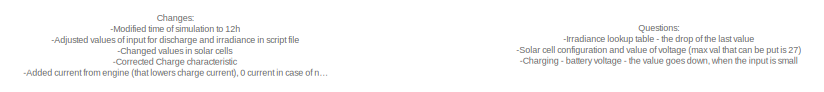
[diagram: root canvas - part 1/3, top right region]
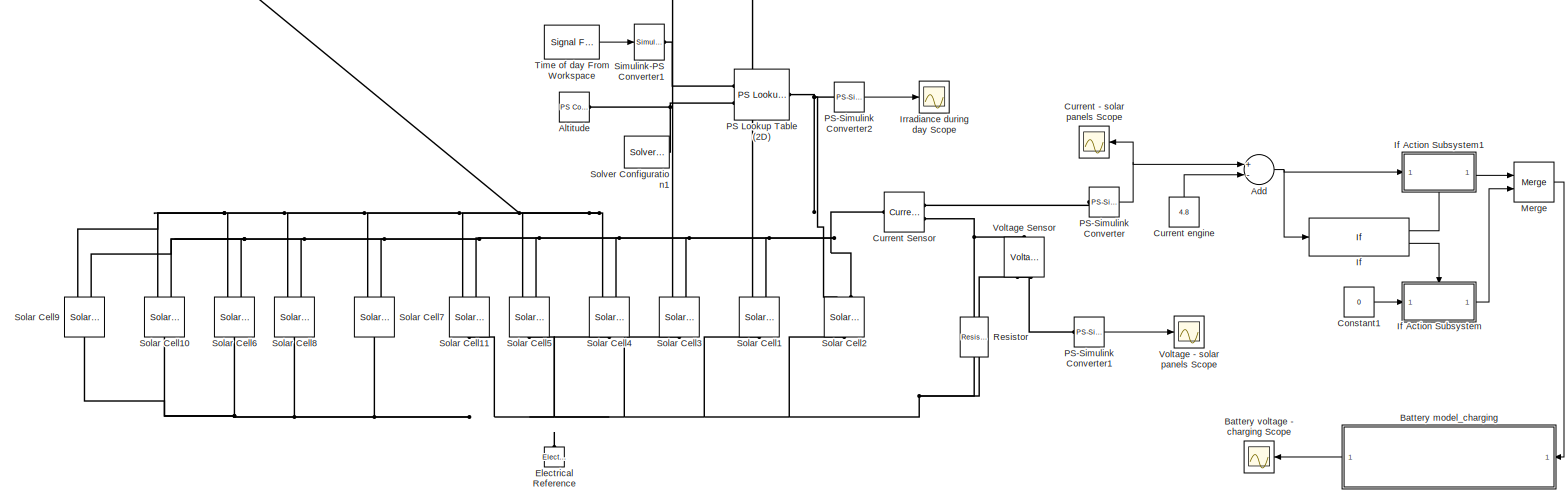
[diagram: root canvas - part 2/3, full width, middle band]
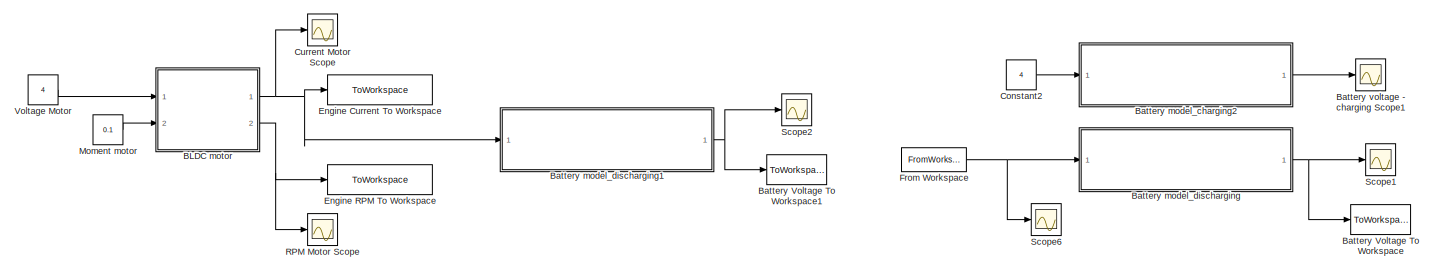
[diagram: root canvas - part 3/3, bottom center region]
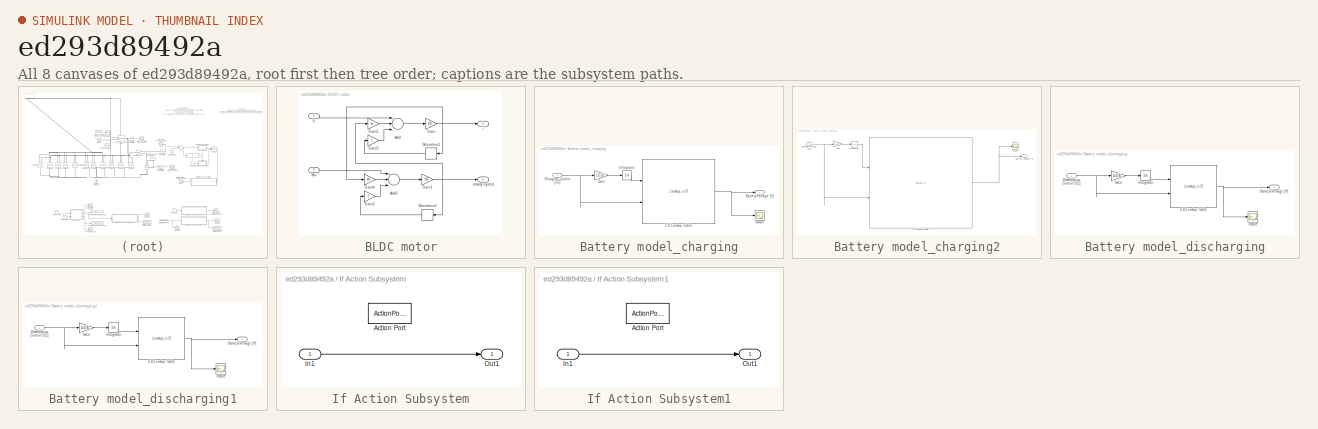
[diagram: thumbnail index - all 8 canvases of the model, root first then tree order]
MODEL slx_ed293d89492a
KIND model
CONFIG AbsTol = auto
CONFIG FixedStep = auto
CONFIG MaxStep = auto
CONFIG MinStep = auto
CONFIG RelTol = 1e-3
CONFIG SampleTimeConstraint = Unconstrained
CONFIG Solver = ode45
CONFIG SolverMode = Auto
CONFIG SolverName = ode45
CONFIG StartTime = 0.0
CONFIG StopTime = t_sim
BLOCK [Sum] Add
  InputSameDT = off
  Inputs = +-
  OutDataTypeStr = Inherit: Inherit via internal rule
  Ports = [2, 1]
  SaturateOnIntegerOverflow = off
BLOCK [Reference] Altitude  REF=fl_lib/Physical Signals/Sources/PS Constant
  ClassName = constant
  ComponentPath = foundation.physical_signal.sources.constant
  ComponentVariantNames = constant
  ComponentVariants = foundation.physical_signal.sources.constant
  LogSimulationData = off
  Ports = [0, 0, 0, 0, 0, 0, 1]
  SchemaVersion = 1
  SourceBlock = fl_lib/Physical Signals/Sources/PS Constant
  SourceFile = foundation.physical_signal.sources.constant
  SourceType = PS Constant
  constant = 1000
  constant_unit = 1
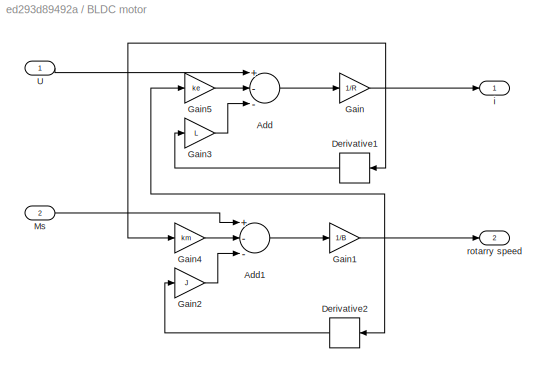
BLOCK [SubSystem] BLDC motor
  Ports = [2, 2]
  RequestExecContextInheritance = off
BLOCK [Sum] BLDC motor/Add
  InputSameDT = off
  Inputs = +--
  OutDataTypeStr = Inherit: Inherit via internal rule
  Ports = [3, 1]
  SaturateOnIntegerOverflow = off
BLOCK [Sum] BLDC motor/Add1
  InputSameDT = off
  Inputs = +--
  OutDataTypeStr = Inherit: Inherit via internal rule
  Ports = [3, 1]
  SaturateOnIntegerOverflow = off
BLOCK [Derivative] BLDC motor/Derivative1
BLOCK [Derivative] BLDC motor/Derivative2
BLOCK [Gain] BLDC motor/Gain
  Gain = 1/R
  OutDataTypeStr = Inherit: Inherit via internal rule
  ParamDataTypeStr = Inherit: Inherit via internal rule
  SaturateOnIntegerOverflow = off
BLOCK [Gain] BLDC motor/Gain1
  Gain = 1/B
  OutDataTypeStr = Inherit: Inherit via internal rule
  ParamDataTypeStr = Inherit: Inherit via internal rule
  SaturateOnIntegerOverflow = off
BLOCK [Gain] BLDC motor/Gain2
  Gain = J
  OutDataTypeStr = Inherit: Inherit via internal rule
  ParamDataTypeStr = Inherit: Inherit via internal rule
  SaturateOnIntegerOverflow = off
BLOCK [Gain] BLDC motor/Gain3
  Gain = L
  OutDataTypeStr = Inherit: Inherit via internal rule
  ParamDataTypeStr = Inherit: Inherit via internal rule
  SaturateOnIntegerOverflow = off
BLOCK [Gain] BLDC motor/Gain4
  Gain = km
  OutDataTypeStr = Inherit: Inherit via internal rule
  ParamDataTypeStr = Inherit: Inherit via internal rule
  SaturateOnIntegerOverflow = off
BLOCK [Gain] BLDC motor/Gain5
  Gain = ke
  OutDataTypeStr = Inherit: Inherit via internal rule
  ParamDataTypeStr = Inherit: Inherit via internal rule
  SaturateOnIntegerOverflow = off
BLOCK [Inport] BLDC motor/Ms
  IconDisplay = Port number
  Port = 2
BLOCK [Inport] BLDC motor/U 
  IconDisplay = Port number
BLOCK [Outport] BLDC motor/i
  IconDisplay = Port number
BLOCK [Outport] BLDC motor/rotarry speed
  IconDisplay = Port number
  Port = 2
BLOCK [ToWorkspace] Battery Voltage To Workspace
  FixptAsFi = on
  MaxDataPoints = inf
  Ports = [1]
  SampleTime = -1
  Save2DSignal = 3-D array (concatenate along third dimension)
  VariableName = simout_d
BLOCK [ToWorkspace] Battery Voltage To Workspace1
  FixptAsFi = on
  MaxDataPoints = inf
  Ports = [1]
  SampleTime = -1
  Save2DSignal = 3-D array (concatenate along third dimension)
  VariableName = simout_d1
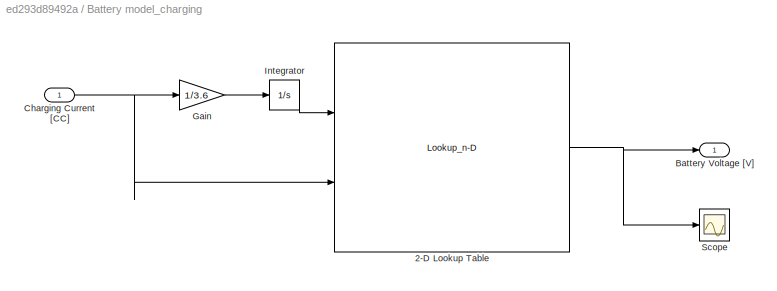
BLOCK [SubSystem] Battery model_charging
  Ports = [1, 1]
  RequestExecContextInheritance = off
BLOCK [Lookup_n-D] Battery model_charging/2-D Lookup Table
  BreakpointsForDimension1 = 16*3300*[0,0.1,0.2,0.3,0.4,0.5,0.6,0.7,0.8,0.9,0.95,1]
  BreakpointsForDimension2 = [1,2]
  InternalRulePriority = Speed
  Ports = [2, 1]
  RndMeth = Simplest
  Table = reshape(4*[3,3.45,3.6,3.65,3.7,3.75,3.8,3.87,3.95,4.08,4.2,4.2,3,3.6,3.8,3.85,3.87,3.9,3.93,3.97,4.05,4.2,4.2,4.2],12,2)
BLOCK [Outport] Battery model_charging/Battery Voltage [V]
  IconDisplay = Port number
BLOCK [Inport] Battery model_charging/Charging Current [CC]
  IconDisplay = Port number
BLOCK [Gain] Battery model_charging/Gain
  Gain = 1/3.6
  OutDataTypeStr = Inherit: Inherit via internal rule
  ParamDataTypeStr = Inherit: Inherit via internal rule
  SaturateOnIntegerOverflow = off
BLOCK [Integrator] Battery model_charging/Integrator
  Ports = [1, 1]
BLOCK [Scope] Battery model_charging/Scope
  DataFormat = StructureWithTime
  Floating = off
  LimitDataPoints = off
  NumInputPorts = 1
  Ports = [1]
  YMax = 5.49028
  YMin = -7.4125
BLOCK [SubSystem] Battery model_charging2
  Ports = [1, 1]
  RequestExecContextInheritance = off
BLOCK [Lookup_n-D] Battery model_charging2/2-D Lookup Table
  BreakpointsForDimension1 = 16*3300*[0,0.1,0.2,0.3,0.4,0.5,0.6,0.7,0.8,0.9,0.95,1]
  BreakpointsForDimension2 = [1,2]
  InternalRulePriority = Speed
  Ports = [2, 1]
  RndMeth = Simplest
  Table = reshape(4*[3,3.45,3.6,3.65,3.7,3.75,3.8,3.87,3.95,4.08,4.2,4.2,3,3.6,3.8,3.85,3.87,3.9,3.93,4.0,4.05,4.2,4.2,4.2],12,2)
BLOCK [Outport] Battery model_charging2/Battery Voltage [V]
  IconDisplay = Port number
BLOCK [Inport] Battery model_charging2/Charging Current [CC]
  IconDisplay = Port number
BLOCK [Gain] Battery model_charging2/Gain
  Gain = 1/3.6
  OutDataTypeStr = Inherit: Inherit via internal rule
  ParamDataTypeStr = Inherit: Inherit via internal rule
  SaturateOnIntegerOverflow = off
BLOCK [Integrator] Battery model_charging2/Integrator
  Ports = [1, 1]
BLOCK [Scope] Battery model_charging2/Scope
  DataFormat = StructureWithTime
  Floating = off
  LimitDataPoints = off
  NumInputPorts = 1
  Ports = [1]
  YMax = 5.49028
  YMin = -7.4125
BLOCK [SubSystem] Battery model_discharging
  Ports = [1, 1]
  RequestExecContextInheritance = off
BLOCK [Lookup_n-D] Battery model_discharging/2-D Lookup Table
  BreakpointsForDimension1 = 16*[0,50,100,200,2900,3000,3100,3200,3300,3400]
  BreakpointsForDimension2 = [0,0.2,0.5,1,2]
  InternalRulePriority = Speed
  Ports = [2, 1]
  RndMeth = Simplest
  Table = reshape(4*[4.2,4.12,4.1,4.04,3.32,3.28,3.25,3.12,3.0,2.5,4.2,4.12,4.1,4.04,3.32,3.28,3.25,3.12,3.0,2.5,4.2,4.05,4,3.95,3.19,3.15,3.05,2.85,2.5,2.5,4.2,3.95,3.9,3.84,3.0,2.92,2.85,2.65,2.5,2.5,4.2,3.8,3.72,3.65,2.8,2.75,2.7,2.61,2.5,2.5],10,5)
BLOCK [Outport] Battery model_discharging/Battery Voltage [V]
  IconDisplay = Port number
BLOCK [Inport] Battery model_discharging/Discharging Current [CC]
  IconDisplay = Port number
BLOCK [Gain] Battery model_discharging/Gain
  Gain = 1/3.6
  OutDataTypeStr = Inherit: Inherit via internal rule
  ParamDataTypeStr = Inherit: Inherit via internal rule
  SaturateOnIntegerOverflow = off
BLOCK [Integrator] Battery model_discharging/Integrator
  Ports = [1, 1]
BLOCK [Scope] Battery model_discharging/Scope
  DataFormat = StructureWithTime
  Floating = off
  LimitDataPoints = off
  NumInputPorts = 1
  Ports = [1]
  YMax = 5.49028
  YMin = -7.4125
BLOCK [SubSystem] Battery model_discharging1
  Ports = [1, 1]
  RequestExecContextInheritance = off
BLOCK [Lookup_n-D] Battery model_discharging1/2-D Lookup Table
  BreakpointsForDimension1 = 16*[0,50,100,200,2900,3000,3100,3200,3300,3400]
  BreakpointsForDimension2 = [0,0.2,0.5,1,2]
  InternalRulePriority = Speed
  Ports = [2, 1]
  RndMeth = Simplest
  Table = reshape(4*[4.2,4.12,4.1,4.04,3.32,3.28,3.25,3.12,3.0,2.5,4.2,4.12,4.1,4.04,3.32,3.28,3.25,3.12,3.0,2.5,4.2,4.05,4,3.95,3.19,3.15,3.05,2.85,2.5,2.5,4.2,3.95,3.9,3.84,3.0,2.92,2.85,2.65,2.5,2.5,4.2,3.8,3.72,3.65,2.8,2.75,2.7,2.61,2.5,2.5],10,5)
BLOCK [Outport] Battery model_discharging1/Battery Voltage [V]
  IconDisplay = Port number
BLOCK [Inport] Battery model_discharging1/Discharging Current [CC]
  IconDisplay = Port number
BLOCK [Gain] Battery model_discharging1/Gain
  Gain = 1/3.6
  OutDataTypeStr = Inherit: Inherit via internal rule
  ParamDataTypeStr = Inherit: Inherit via internal rule
  SaturateOnIntegerOverflow = off
BLOCK [Integrator] Battery model_discharging1/Integrator
  Ports = [1, 1]
BLOCK [Scope] Battery model_discharging1/Scope
  DataFormat = StructureWithTime
  Floating = off
  LimitDataPoints = off
  NumInputPorts = 1
  Ports = [1]
  YMax = 5.49028
  YMin = -7.4125
BLOCK [Scope] Battery voltage -  charging Scope
  DataFormat = StructureWithTime
  Floating = off
  LegendLocations = 0.77589     0.89061     0.18346    0.034937
  LimitDataPoints = off
  NumInputPorts = 1
  Ports = [1]
  SaveName = ScopeData3
  ShowLegends = on
  YMax = 18
  YMin = 11
BLOCK [Scope] Battery voltage -  charging Scope1
  DataFormat = StructureWithTime
  Floating = off
  LegendLocations = 0.76953     0.89061     0.18982    0.034937
  LimitDataPoints = off
  NumInputPorts = 1
  Ports = [1]
  SaveName = ScopeData6
  ShowLegends = on
  YMax = 16.8
  YMin = 14.4
BLOCK [Constant] Constant1
  Value = 0
BLOCK [Constant] Constant2
  Value = 4
BLOCK [Scope] Current - solar panels Scope
  Floating = off
  LegendLocations = 0.75725      0.8785     0.19765    0.038804
  LimitDataPoints = off
  NumInputPorts = 1
  Ports = [1]
  SaveName = ScopeData4
  ShowLegends = on
  YMax = 6.8
  YMin = 5.9
BLOCK [Scope] Current Motor Scope
  DataFormat = StructureWithTime
  Floating = off
  LimitDataPoints = off
  NumInputPorts = 1
  Ports = [1]
  SaveName = ScopeData8
  ShowLegends = on
  YMax = 5.05693
  YMin = 4.57531
BLOCK [Reference] Current Sensor  REF=fl_lib/Electrical/Electrical Sensors/Current Sensor
  ClassName = current
  ComponentPath = foundation.electrical.sensors.current
  ComponentVariantNames = current
  ComponentVariants = foundation.electrical.sensors.current
  LogSimulationData = off
  Ports = [0, 0, 0, 0, 0, 1, 2]
  SchemaVersion = 1
  SourceBlock = fl_lib/Electrical/Electrical Sensors/Current Sensor
  SourceFile = foundation.electrical.sensors.current
  SourceType = Current Sensor
BLOCK [Constant] Current engine
  Value = 4.8
BLOCK [Reference] Electrical Reference  REF=fl_lib/Electrical/Electrical Elements/Electrical Reference
  ClassName = reference
  ComponentPath = foundation.electrical.elements.reference
  ComponentVariantNames = reference
  ComponentVariants = foundation.electrical.elements.reference
  LogSimulationData = off
  Ports = [0, 0, 0, 0, 0, 1]
  SchemaVersion = 1
  SourceBlock = fl_lib/Electrical/Electrical Elements/Electrical Reference
  SourceFile = foundation.electrical.elements.reference
  SourceType = Electrical Reference
BLOCK [ToWorkspace] Engine Current To Workspace
  FixptAsFi = on
  MaxDataPoints = inf
  Ports = [1]
  SampleTime = -1
  Save2DSignal = 3-D array (concatenate along third dimension)
  VariableName = simout_mot_current
BLOCK [ToWorkspace] Engine RPM To Workspace
  FixptAsFi = on
  MaxDataPoints = inf
  Ports = [1]
  SampleTime = -1
  Save2DSignal = 3-D array (concatenate along third dimension)
  VariableName = simout_mot_RPM
BLOCK [FromWorkspace] From Workspace
  SampleTime = 0
  VariableName = simin_d
  ZeroCross = on
BLOCK [If] If
  Ports = [1, 2]
BLOCK [SubSystem] If Action Subsystem
  Ports = [1, 1, 0, 0, 0, 0, 0, 1]
  RequestExecContextInheritance = off
  TreatAsAtomicUnit = on
BLOCK [ActionPort] If Action Subsystem/Action Port
  ActionType = else
BLOCK [Inport] If Action Subsystem/In1
  IconDisplay = Port number
BLOCK [Outport] If Action Subsystem/Out1
  IconDisplay = Port number
BLOCK [SubSystem] If Action Subsystem1
  Ports = [1, 1, 0, 0, 0, 0, 0, 1]
  RequestExecContextInheritance = off
  TreatAsAtomicUnit = on
BLOCK [ActionPort] If Action Subsystem1/Action Port
  ActionType = then
BLOCK [Inport] If Action Subsystem1/In1
  IconDisplay = Port number
BLOCK [Outport] If Action Subsystem1/Out1
  IconDisplay = Port number
BLOCK [Scope] Irradiance during day Scope
  Floating = off
  LegendLocations = 0.7502      0.8785     0.20471    0.038804
  LimitDataPoints = off
  NumInputPorts = 1
  Ports = [1]
  SaveName = ScopeData2
  ShowLegends = on
  YMax = 2
  YMin = 0
BLOCK [Merge] Merge
  Ports = [2, 1]
BLOCK [Constant] Moment motor
  Value = 0.1
BLOCK [Reference] PS Lookup Table (2D)  REF=fl_lib/Physical Signals/Lookup Tables/PS Lookup Table (2D)
  ClassName = two_dimensional
  ComponentPath = foundation.physical_signal.lookup_tables.two_dimensional
  ComponentVariantNames = two_dimensional
  ComponentVariants = foundation.physical_signal.lookup_tables.two_dimensional
  LogSimulationData = off
  Ports = [0, 0, 0, 0, 0, 2, 1]
  SchemaVersion = 1
  SourceBlock = fl_lib/Physical Signals/Lookup Tables/PS Lookup Table (2D)
  SourceFile = foundation.physical_signal.lookup_tables.two_dimensional
  SourceType = PS Lookup Table (2D)
  extrap_method = 1
  extrap_method_unit = 1
  interp_method = 1
  interp_method_unit = 1
  x_t = [4,5,6,7,8,9,10,11,12,13,14,15,16,17,18,19,20]
  x_t_unit = 1
  y_t = [2000,4000,8000]
  y_t_unit = 1
  z_t = [0,0,0;0,10,90;350,440,600;600,700,900;750,880,1040;820,920,1080;900,980,1100;940,1000,1110;960,1020,1150;940,1000,1140;;900,980,1100;;820,920,1080;750,880,1040;600,700,900;350,440,600;0,10,90;0,0,0]
  z_t_unit = 1
BLOCK [Reference] PS-Simulink Converter  REF=nesl_utility/PS-Simulink
Converter
  AffineConversion = off
  Frequencies = []
  LeftPortType = input
  PhysicalDomain = network_engine_domain
  Ports = [0, 1, 0, 0, 0, 1]
  PseudoPeriodic = off
  RightPortType = output
  SourceBlock = nesl_utility/PS-Simulink\nConverter
  SourceType = PS-Simulink\nConverter
  SubClassName = ps_output
  Unit = 1
BLOCK [Reference] PS-Simulink Converter1  REF=nesl_utility/PS-Simulink
Converter
  AffineConversion = off
  Frequencies = []
  LeftPortType = input
  PhysicalDomain = network_engine_domain
  Ports = [0, 1, 0, 0, 0, 1]
  PseudoPeriodic = off
  RightPortType = output
  SourceBlock = nesl_utility/PS-Simulink\nConverter
  SourceType = PS-Simulink\nConverter
  SubClassName = ps_output
  Unit = 1
BLOCK [Reference] PS-Simulink Converter2  REF=nesl_utility/PS-Simulink
Converter
  AffineConversion = off
  Frequencies = []
  LeftPortType = input
  PhysicalDomain = network_engine_domain
  Ports = [0, 1, 0, 0, 0, 1]
  PseudoPeriodic = off
  RightPortType = output
  SourceBlock = nesl_utility/PS-Simulink\nConverter
  SourceType = PS-Simulink\nConverter
  SubClassName = ps_output
  Unit = 1
BLOCK [Scope] RPM Motor Scope
  DataFormat = StructureWithTime
  Floating = off
  LegendLocations = 0.79058     0.86454     0.15796    0.043262
  LimitDataPoints = off
  NumInputPorts = 1
  Ports = [1]
  SaveName = ScopeData9
  ShowLegends = on
  YMax = -0.475494
  YMin = -0.475494
BLOCK [Reference] Resistor  REF=fl_lib/Electrical/Electrical Elements/Resistor
  ClassName = resistor
  ComponentPath = foundation.electrical.elements.resistor
  ComponentVariantNames = resistor
  ComponentVariants = foundation.electrical.elements.resistor
  LogSimulationData = off
  Ports = [0, 0, 0, 0, 0, 1, 1]
  R = 1
  R_unit = Ohm
  SchemaVersion = 1
  SourceBlock = fl_lib/Electrical/Electrical Elements/Resistor
  SourceFile = foundation.electrical.elements.resistor
  SourceType = Resistor
  i = 0
  i_priority = High
  i_specify = off
  i_unit = A
  v = 0
  v_priority = High
  v_specify = off
  v_unit = V
BLOCK [Scope] Scope1
  DataFormat = StructureWithTime
  Floating = off
  LimitDataPoints = off
  NumInputPorts = 1
  Ports = [1]
  SaveName = ScopeData1
  ShowLegends = on
  YMax = 17
  YMin = 10
BLOCK [Scope] Scope2
  DataFormat = StructureWithTime
  Floating = off
  LimitDataPoints = off
  NumInputPorts = 1
  Ports = [1]
  SaveName = ScopeData10
  ShowLegends = on
  YMax = 17
  YMin = 10
BLOCK [Scope] Scope6
  Floating = off
  LimitDataPoints = off
  NumInputPorts = 1
  Ports = [1]
  SaveName = ScopeData7
  YMax = 2
  YMin = 2
BLOCK [Reference] Simulink-PS Converter1  REF=nesl_utility/Simulink-PS
Converter
  AffineConversion = off
  Frequencies = []
  InputFilterTimeConstant = 0.001
  InputFiltering = off
  LeftPortType = input
  NoiseDistribution = none
  NoiseParameters = []
  PhysicalDomain = network_engine_domain
  Ports = [1, 0, 0, 0, 0, 0, 1]
  PseudoPeriodic = off
  RightPortType = output
  SimscapeFilterOrder = 1
  SourceBlock = nesl_utility/Simulink-PS\nConverter
  SourceType = Simulink-PS\nConverter
  SubClassName = ps_input
  UdotUserProvided = 1
  Unit = 1
BLOCK [Reference] Solar Cell1  REF=elec_lib/Sources/Solar Cell
  ClassName = Simscape variant
  ComponentPath = elec.sources.solar_cell
  ComponentVariantNames = No thermal port, Show thermal port
  ComponentVariants = elec.sources.solar_cell, elec.sources.solar_cell_thermal
  EG = 1.11
  EG_unit = eV
  Iph = 7.34
  Iph_unit = A
  Ir0 = 1000
  Ir0_unit = W/m^2
  Is = 1e-6
  Is2 = 0
  Is2_unit = A
  Is_unit = A
  Isc = 0.9
  Isc_unit = A
  LogSimulationData = off
  N2 = 2
  N2_unit = 1
  N_series = 1
  N_series_unit = 1
  Ports = [0, 0, 0, 0, 0, 2, 1]
  Rp = Inf
  Rp_unit = Ohm
  Rs = 0
  Rs_unit = Ohm
  SchemaVersion = 1
  SourceBlock = elec_lib/Sources/Solar Cell
  SourceFile = elec.sources.solar_cell
  SourceType = Solar Cell
  TFIXED = 25
  TFIXED_unit = C
  TIPH1 = 0
  TIPH1_unit = 1/K
  TRP1 = 0
  TRP1_unit = 1
  TRS1 = 0
  TRS1_unit = 1
  TXIS1 = 3
  TXIS1_unit = 1
  TXIS2 = 3
  TXIS2_unit = 1
  Tmeas = 25
  Tmeas_unit = C
  Voc = 24
  Voc_unit = V
  ec = 1.5
  ec_unit = 1
  initial_temperature = 25
  initial_temperature_unit = C
  prm = 1
  prm_unit = 1
  thermal_mass = 100
  thermal_mass_unit = J/K
BLOCK [Reference] Solar Cell10  REF=elec_lib/Sources/Solar Cell
  ClassName = Simscape variant
  ComponentPath = elec.sources.solar_cell
  ComponentVariantNames = No thermal port, Show thermal port
  ComponentVariants = elec.sources.solar_cell, elec.sources.solar_cell_thermal
  EG = 1.11
  EG_unit = eV
  Iph = 7.34
  Iph_unit = A
  Ir0 = 1000
  Ir0_unit = W/m^2
  Is = 1e-6
  Is2 = 0
  Is2_unit = A
  Is_unit = A
  Isc = 0.9
  Isc_unit = A
  LogSimulationData = off
  N2 = 2
  N2_unit = 1
  N_series = 1
  N_series_unit = 1
  Ports = [0, 0, 0, 0, 0, 2, 1]
  Rp = Inf
  Rp_unit = Ohm
  Rs = 0
  Rs_unit = Ohm
  SchemaVersion = 1
  SourceBlock = elec_lib/Sources/Solar Cell
  SourceFile = elec.sources.solar_cell
  SourceType = Solar Cell
  TFIXED = 25
  TFIXED_unit = C
  TIPH1 = 0
  TIPH1_unit = 1/K
  TRP1 = 0
  TRP1_unit = 1
  TRS1 = 0
  TRS1_unit = 1
  TXIS1 = 3
  TXIS1_unit = 1
  TXIS2 = 3
  TXIS2_unit = 1
  Tmeas = 25
  Tmeas_unit = C
  Voc = 24
  Voc_unit = V
  ec = 1.5
  ec_unit = 1
  initial_temperature = 25
  initial_temperature_unit = C
  prm = 1
  prm_unit = 1
  thermal_mass = 100
  thermal_mass_unit = J/K
BLOCK [Reference] Solar Cell11  REF=elec_lib/Sources/Solar Cell
  ClassName = Simscape variant
  ComponentPath = elec.sources.solar_cell
  ComponentVariantNames = No thermal port, Show thermal port
  ComponentVariants = elec.sources.solar_cell, elec.sources.solar_cell_thermal
  EG = 1.11
  EG_unit = eV
  Iph = 7.34
  Iph_unit = A
  Ir0 = 1000
  Ir0_unit = W/m^2
  Is = 1e-6
  Is2 = 0
  Is2_unit = A
  Is_unit = A
  Isc = 0.9
  Isc_unit = A
  LogSimulationData = off
  N2 = 2
  N2_unit = 1
  N_series = 1
  N_series_unit = 1
  Ports = [0, 0, 0, 0, 0, 2, 1]
  Rp = Inf
  Rp_unit = Ohm
  Rs = 0
  Rs_unit = Ohm
  SchemaVersion = 1
  SourceBlock = elec_lib/Sources/Solar Cell
  SourceFile = elec.sources.solar_cell
  SourceType = Solar Cell
  TFIXED = 25
  TFIXED_unit = C
  TIPH1 = 0
  TIPH1_unit = 1/K
  TRP1 = 0
  TRP1_unit = 1
  TRS1 = 0
  TRS1_unit = 1
  TXIS1 = 3
  TXIS1_unit = 1
  TXIS2 = 3
  TXIS2_unit = 1
  Tmeas = 25
  Tmeas_unit = C
  Voc = 24
  Voc_unit = V
  ec = 1.5
  ec_unit = 1
  initial_temperature = 25
  initial_temperature_unit = C
  prm = 1
  prm_unit = 1
  thermal_mass = 100
  thermal_mass_unit = J/K
BLOCK [Reference] Solar Cell2  REF=elec_lib/Sources/Solar Cell
  ClassName = Simscape variant
  ComponentPath = elec.sources.solar_cell
  ComponentVariantNames = No thermal port, Show thermal port
  ComponentVariants = elec.sources.solar_cell, elec.sources.solar_cell_thermal
  EG = 1.11
  EG_unit = eV
  Iph = 7.34
  Iph_unit = A
  Ir0 = 1000
  Ir0_unit = W/m^2
  Is = 1e-6
  Is2 = 0
  Is2_unit = A
  Is_unit = A
  Isc = 0.9
  Isc_unit = A
  LogSimulationData = off
  N2 = 2
  N2_unit = 1
  N_series = 1
  N_series_unit = 1
  Ports = [0, 0, 0, 0, 0, 2, 1]
  Rp = Inf
  Rp_unit = Ohm
  Rs = 0
  Rs_unit = Ohm
  SchemaVersion = 1
  SourceBlock = elec_lib/Sources/Solar Cell
  SourceFile = elec.sources.solar_cell
  SourceType = Solar Cell
  TFIXED = 25
  TFIXED_unit = C
  TIPH1 = 0
  TIPH1_unit = 1/K
  TRP1 = 0
  TRP1_unit = 1
  TRS1 = 0
  TRS1_unit = 1
  TXIS1 = 3
  TXIS1_unit = 1
  TXIS2 = 3
  TXIS2_unit = 1
  Tmeas = 25
  Tmeas_unit = C
  Voc = 24
  Voc_unit = V
  ec = 1.5
  ec_unit = 1
  initial_temperature = 25
  initial_temperature_unit = C
  prm = 1
  prm_unit = 1
  thermal_mass = 100
  thermal_mass_unit = J/K
BLOCK [Reference] Solar Cell3  REF=elec_lib/Sources/Solar Cell
  ClassName = Simscape variant
  ComponentPath = elec.sources.solar_cell
  ComponentVariantNames = No thermal port, Show thermal port
  ComponentVariants = elec.sources.solar_cell, elec.sources.solar_cell_thermal
  EG = 1.11
  EG_unit = eV
  Iph = 7.34
  Iph_unit = A
  Ir0 = 1000
  Ir0_unit = W/m^2
  Is = 1e-6
  Is2 = 0
  Is2_unit = A
  Is_unit = A
  Isc = 0.9
  Isc_unit = A
  LogSimulationData = off
  N2 = 2
  N2_unit = 1
  N_series = 1
  N_series_unit = 1
  Ports = [0, 0, 0, 0, 0, 2, 1]
  Rp = Inf
  Rp_unit = Ohm
  Rs = 0
  Rs_unit = Ohm
  SchemaVersion = 1
  SourceBlock = elec_lib/Sources/Solar Cell
  SourceFile = elec.sources.solar_cell
  SourceType = Solar Cell
  TFIXED = 25
  TFIXED_unit = C
  TIPH1 = 0
  TIPH1_unit = 1/K
  TRP1 = 0
  TRP1_unit = 1
  TRS1 = 0
  TRS1_unit = 1
  TXIS1 = 3
  TXIS1_unit = 1
  TXIS2 = 3
  TXIS2_unit = 1
  Tmeas = 25
  Tmeas_unit = C
  Voc = 24
  Voc_unit = V
  ec = 1.5
  ec_unit = 1
  initial_temperature = 25
  initial_temperature_unit = C
  prm = 1
  prm_unit = 1
  thermal_mass = 100
  thermal_mass_unit = J/K
BLOCK [Reference] Solar Cell4  REF=elec_lib/Sources/Solar Cell
  ClassName = Simscape variant
  ComponentPath = elec.sources.solar_cell
  ComponentVariantNames = No thermal port, Show thermal port
  ComponentVariants = elec.sources.solar_cell, elec.sources.solar_cell_thermal
  EG = 1.11
  EG_unit = eV
  Iph = 7.34
  Iph_unit = A
  Ir0 = 1000
  Ir0_unit = W/m^2
  Is = 1e-6
  Is2 = 0
  Is2_unit = A
  Is_unit = A
  Isc = 0.9
  Isc_unit = A
  LogSimulationData = off
  N2 = 2
  N2_unit = 1
  N_series = 1
  N_series_unit = 1
  Ports = [0, 0, 0, 0, 0, 2, 1]
  Rp = Inf
  Rp_unit = Ohm
  Rs = 0
  Rs_unit = Ohm
  SchemaVersion = 1
  SourceBlock = elec_lib/Sources/Solar Cell
  SourceFile = elec.sources.solar_cell
  SourceType = Solar Cell
  TFIXED = 25
  TFIXED_unit = C
  TIPH1 = 0
  TIPH1_unit = 1/K
  TRP1 = 0
  TRP1_unit = 1
  TRS1 = 0
  TRS1_unit = 1
  TXIS1 = 3
  TXIS1_unit = 1
  TXIS2 = 3
  TXIS2_unit = 1
  Tmeas = 25
  Tmeas_unit = C
  Voc = 24
  Voc_unit = V
  ec = 1.5
  ec_unit = 1
  initial_temperature = 25
  initial_temperature_unit = C
  prm = 1
  prm_unit = 1
  thermal_mass = 100
  thermal_mass_unit = J/K
BLOCK [Reference] Solar Cell5  REF=elec_lib/Sources/Solar Cell
  ClassName = Simscape variant
  ComponentPath = elec.sources.solar_cell
  ComponentVariantNames = No thermal port, Show thermal port
  ComponentVariants = elec.sources.solar_cell, elec.sources.solar_cell_thermal
  EG = 1.11
  EG_unit = eV
  Iph = 7.34
  Iph_unit = A
  Ir0 = 1000
  Ir0_unit = W/m^2
  Is = 1e-6
  Is2 = 0
  Is2_unit = A
  Is_unit = A
  Isc = 0.9
  Isc_unit = A
  LogSimulationData = off
  N2 = 2
  N2_unit = 1
  N_series = 1
  N_series_unit = 1
  Ports = [0, 0, 0, 0, 0, 2, 1]
  Rp = Inf
  Rp_unit = Ohm
  Rs = 0
  Rs_unit = Ohm
  SchemaVersion = 1
  SourceBlock = elec_lib/Sources/Solar Cell
  SourceFile = elec.sources.solar_cell
  SourceType = Solar Cell
  TFIXED = 25
  TFIXED_unit = C
  TIPH1 = 0
  TIPH1_unit = 1/K
  TRP1 = 0
  TRP1_unit = 1
  TRS1 = 0
  TRS1_unit = 1
  TXIS1 = 3
  TXIS1_unit = 1
  TXIS2 = 3
  TXIS2_unit = 1
  Tmeas = 25
  Tmeas_unit = C
  Voc = 24
  Voc_unit = V
  ec = 1.5
  ec_unit = 1
  initial_temperature = 25
  initial_temperature_unit = C
  prm = 1
  prm_unit = 1
  thermal_mass = 100
  thermal_mass_unit = J/K
BLOCK [Reference] Solar Cell6  REF=elec_lib/Sources/Solar Cell
  ClassName = Simscape variant
  ComponentPath = elec.sources.solar_cell
  ComponentVariantNames = No thermal port, Show thermal port
  ComponentVariants = elec.sources.solar_cell, elec.sources.solar_cell_thermal
  EG = 1.11
  EG_unit = eV
  Iph = 7.34
  Iph_unit = A
  Ir0 = 1000
  Ir0_unit = W/m^2
  Is = 1e-6
  Is2 = 0
  Is2_unit = A
  Is_unit = A
  Isc = 0.9
  Isc_unit = A
  LogSimulationData = off
  N2 = 2
  N2_unit = 1
  N_series = 1
  N_series_unit = 1
  Ports = [0, 0, 0, 0, 0, 2, 1]
  Rp = Inf
  Rp_unit = Ohm
  Rs = 0
  Rs_unit = Ohm
  SchemaVersion = 1
  SourceBlock = elec_lib/Sources/Solar Cell
  SourceFile = elec.sources.solar_cell
  SourceType = Solar Cell
  TFIXED = 25
  TFIXED_unit = C
  TIPH1 = 0
  TIPH1_unit = 1/K
  TRP1 = 0
  TRP1_unit = 1
  TRS1 = 0
  TRS1_unit = 1
  TXIS1 = 3
  TXIS1_unit = 1
  TXIS2 = 3
  TXIS2_unit = 1
  Tmeas = 25
  Tmeas_unit = C
  Voc = 24
  Voc_unit = V
  ec = 1.5
  ec_unit = 1
  initial_temperature = 25
  initial_temperature_unit = C
  prm = 1
  prm_unit = 1
  thermal_mass = 100
  thermal_mass_unit = J/K
BLOCK [Reference] Solar Cell7  REF=elec_lib/Sources/Solar Cell
  ClassName = Simscape variant
  ComponentPath = elec.sources.solar_cell
  ComponentVariantNames = No thermal port, Show thermal port
  ComponentVariants = elec.sources.solar_cell, elec.sources.solar_cell_thermal
  EG = 1.11
  EG_unit = eV
  Iph = 7.34
  Iph_unit = A
  Ir0 = 1000
  Ir0_unit = W/m^2
  Is = 1e-6
  Is2 = 0
  Is2_unit = A
  Is_unit = A
  Isc = 0.9
  Isc_unit = A
  LogSimulationData = off
  N2 = 2
  N2_unit = 1
  N_series = 1
  N_series_unit = 1
  Ports = [0, 0, 0, 0, 0, 2, 1]
  Rp = Inf
  Rp_unit = Ohm
  Rs = 0
  Rs_unit = Ohm
  SchemaVersion = 1
  SourceBlock = elec_lib/Sources/Solar Cell
  SourceFile = elec.sources.solar_cell
  SourceType = Solar Cell
  TFIXED = 25
  TFIXED_unit = C
  TIPH1 = 0
  TIPH1_unit = 1/K
  TRP1 = 0
  TRP1_unit = 1
  TRS1 = 0
  TRS1_unit = 1
  TXIS1 = 3
  TXIS1_unit = 1
  TXIS2 = 3
  TXIS2_unit = 1
  Tmeas = 25
  Tmeas_unit = C
  Voc = 24
  Voc_unit = V
  ec = 1.5
  ec_unit = 1
  initial_temperature = 25
  initial_temperature_unit = C
  prm = 1
  prm_unit = 1
  thermal_mass = 100
  thermal_mass_unit = J/K
BLOCK [Reference] Solar Cell8  REF=elec_lib/Sources/Solar Cell
  ClassName = Simscape variant
  ComponentPath = elec.sources.solar_cell
  ComponentVariantNames = No thermal port, Show thermal port
  ComponentVariants = elec.sources.solar_cell, elec.sources.solar_cell_thermal
  EG = 1.11
  EG_unit = eV
  Iph = 7.34
  Iph_unit = A
  Ir0 = 1000
  Ir0_unit = W/m^2
  Is = 1e-6
  Is2 = 0
  Is2_unit = A
  Is_unit = A
  Isc = 0.9
  Isc_unit = A
  LogSimulationData = off
  N2 = 2
  N2_unit = 1
  N_series = 1
  N_series_unit = 1
  Ports = [0, 0, 0, 0, 0, 2, 1]
  Rp = Inf
  Rp_unit = Ohm
  Rs = 0
  Rs_unit = Ohm
  SchemaVersion = 1
  SourceBlock = elec_lib/Sources/Solar Cell
  SourceFile = elec.sources.solar_cell
  SourceType = Solar Cell
  TFIXED = 25
  TFIXED_unit = C
  TIPH1 = 0
  TIPH1_unit = 1/K
  TRP1 = 0
  TRP1_unit = 1
  TRS1 = 0
  TRS1_unit = 1
  TXIS1 = 3
  TXIS1_unit = 1
  TXIS2 = 3
  TXIS2_unit = 1
  Tmeas = 25
  Tmeas_unit = C
  Voc = 24
  Voc_unit = V
  ec = 1.5
  ec_unit = 1
  initial_temperature = 25
  initial_temperature_unit = C
  prm = 1
  prm_unit = 1
  thermal_mass = 100
  thermal_mass_unit = J/K
BLOCK [Reference] Solar Cell9  REF=elec_lib/Sources/Solar Cell
  ClassName = Simscape variant
  ComponentPath = elec.sources.solar_cell
  ComponentVariantNames = No thermal port, Show thermal port
  ComponentVariants = elec.sources.solar_cell, elec.sources.solar_cell_thermal
  EG = 1.11
  EG_unit = eV
  Iph = 7.34
  Iph_unit = A
  Ir0 = 1000
  Ir0_unit = W/m^2
  Is = 1e-6
  Is2 = 0
  Is2_unit = A
  Is_unit = A
  Isc = 0.9
  Isc_unit = A
  LogSimulationData = off
  N2 = 2
  N2_unit = 1
  N_series = 1
  N_series_unit = 1
  Ports = [0, 0, 0, 0, 0, 2, 1]
  Rp = Inf
  Rp_unit = Ohm
  Rs = 0
  Rs_unit = Ohm
  SchemaVersion = 1
  SourceBlock = elec_lib/Sources/Solar Cell
  SourceFile = elec.sources.solar_cell
  SourceType = Solar Cell
  TFIXED = 25
  TFIXED_unit = C
  TIPH1 = 0
  TIPH1_unit = 1/K
  TRP1 = 0
  TRP1_unit = 1
  TRS1 = 0
  TRS1_unit = 1
  TXIS1 = 3
  TXIS1_unit = 1
  TXIS2 = 3
  TXIS2_unit = 1
  Tmeas = 25
  Tmeas_unit = C
  Voc = 24
  Voc_unit = V
  ec = 1.5
  ec_unit = 1
  initial_temperature = 25
  initial_temperature_unit = C
  prm = 1
  prm_unit = 1
  thermal_mass = 100
  thermal_mass_unit = J/K
BLOCK [Reference] Solver Configuration1  REF=nesl_utility/Solver
Configuration
  AbsTol = 1e-06
  Accelerate = off
  AutomaticFiltering = on
  DelaysMemoryBudget = 1024
  DoDC = off
  DoFixedCost = on
  EnableSwitchedLinearOptims = on
  FilteringTimeConstant = 0.001
  FrequencyDomain = off
  Harmonics = []
  LeftPortType = input
  LinearAlgebra = Sparse
  LocalSolverChoice = NE_BACKWARD_EULER_ADVANCER
  LocalSolverSampleTime = 1
  MaxModeIter = 2
  MaxNonlinIter = 3
  MinStep = 1e-09
  NumHomotopyIterations = 100
  PhysicalDomain = network_engine_domain
  Ports = [0, 0, 0, 0, 0, 0, 1]
  Profile = off
  RelTol = 0.001
  ResidualTolerance = 1e-09
  RevertToSquareIcSolve = off
  RightPortType = generic
  SimulateNoise = off
  SourceBlock = nesl_utility/Solver\nConfiguration
  SourceType = Solver\nConfiguration
  SubClassName = solver
  ToWorkspace = off
  Tones = []
  UseCCode = off
  UseLocalSampling = off
  UseLocalSolver = on
BLOCK [Reference] Time of day From Workspace  REF=dspsrcs4/Signal From
Workspace
  OutputAfterFinalValue = Setting to zero
  Ports = [0, 1]
  SourceBlock = dspsrcs4/Signal From\nWorkspace
  SourceType = Signal From Workspace
  Ts = 1
  X = irr_time
  ignoreOrWarnInputAndFrameLengths = off
  nsamps = 1
BLOCK [Scope] Voltage - solar panels Scope
  Floating = off
  LegendLocations = 0.7502      0.8785     0.20471    0.038804
  LimitDataPoints = off
  NumInputPorts = 1
  Ports = [1]
  SaveName = ScopeData5
  ShowLegends = on
  YMax = 2
  YMin = 0
BLOCK [Constant] Voltage Motor
  Value = 4
BLOCK [Reference] Voltage Sensor  REF=fl_lib/Electrical/Electrical Sensors/Voltage Sensor
  ClassName = voltage
  ComponentPath = foundation.electrical.sensors.voltage
  ComponentVariantNames = voltage
  ComponentVariants = foundation.electrical.sensors.voltage
  LogSimulationData = off
  Ports = [0, 0, 0, 0, 0, 1, 2]
  SchemaVersion = 1
  SourceBlock = fl_lib/Electrical/Electrical Sensors/Voltage Sensor
  SourceFile = foundation.electrical.sensors.voltage
  SourceType = Voltage Sensor
ANNOTATION (root): Changes: -Modified time of simulation to 12h -Adjusted values of input for discharge and irradiance in script file -Changed values in solar cells -Corrected Charge characteristic -Added current from engine (that lowers charge current), 0 current in case of negative value
ANNOTATION (root): Questions: -Irradiance lookup table - the drop of the last value -Solar cell configuration and value of voltage (max val that can be put is 27) -Charging - battery voltage - the value goes down, when the input is small
NET Add:1 -> If Action Subsystem1:1, If:1
LINE BLDC motor/Add1:1 -> BLDC motor/Gain1:1
LINE BLDC motor/Add:1 -> BLDC motor/Gain:1
LINE BLDC motor/Derivative1:1 -> BLDC motor/Gain3:1
LINE BLDC motor/Derivative2:1 -> BLDC motor/Gain2:1
NET BLDC motor/Gain1:1 -> BLDC motor/Derivative2:1, BLDC motor/Gain5:1, BLDC motor/rotarry speed:1
LINE BLDC motor/Gain2:1 -> BLDC motor/Add1:3
LINE BLDC motor/Gain3:1 -> BLDC motor/Add:3
LINE BLDC motor/Gain4:1 -> BLDC motor/Add1:2
LINE BLDC motor/Gain5:1 -> BLDC motor/Add:2
NET BLDC motor/Gain:1 -> BLDC motor/Derivative1:1, BLDC motor/Gain4:1, BLDC motor/i:1
LINE BLDC motor/Ms:1 -> BLDC motor/Add1:1
LINE BLDC motor/U :1 -> BLDC motor/Add:1
NET BLDC motor:1 -> Battery model_discharging1:1, Current Motor Scope:1, Engine Current To Workspace:1
NET BLDC motor:2 -> Engine RPM To Workspace:1, RPM Motor Scope:1
NET Battery model_charging/2-D Lookup Table:1 -> Battery model_charging/Battery Voltage [V]:1, Battery model_charging/Scope:1
NET Battery model_charging/Charging Current [CC]:1 -> Battery model_charging/2-D Lookup Table:2, Battery model_charging/Gain:1
LINE Battery model_charging/Gain:1 -> Battery model_charging/Integrator:1
LINE Battery model_charging/Integrator:1 -> Battery model_charging/2-D Lookup Table:1
NET Battery model_charging2/2-D Lookup Table:1 -> Battery model_charging2/Battery Voltage [V]:1, Battery model_charging2/Scope:1
NET Battery model_charging2/Charging Current [CC]:1 -> Battery model_charging2/2-D Lookup Table:2, Battery model_charging2/Gain:1
LINE Battery model_charging2/Gain:1 -> Battery model_charging2/Integrator:1
LINE Battery model_charging2/Integrator:1 -> Battery model_charging2/2-D Lookup Table:1
LINE Battery model_charging2:1 -> Battery voltage -  charging Scope1:1
LINE Battery model_charging:1 -> Battery voltage -  charging Scope:1
NET Battery model_discharging/2-D Lookup Table:1 -> Battery model_discharging/Battery Voltage [V]:1, Battery model_discharging/Scope:1
NET Battery model_discharging/Discharging Current [CC]:1 -> Battery model_discharging/2-D Lookup Table:2, Battery model_discharging/Gain:1
LINE Battery model_discharging/Gain:1 -> Battery model_discharging/Integrator:1
LINE Battery model_discharging/Integrator:1 -> Battery model_discharging/2-D Lookup Table:1
NET Battery model_discharging1/2-D Lookup Table:1 -> Battery model_discharging1/Battery Voltage [V]:1, Battery model_discharging1/Scope:1
NET Battery model_discharging1/Discharging Current [CC]:1 -> Battery model_discharging1/2-D Lookup Table:2, Battery model_discharging1/Gain:1
LINE Battery model_discharging1/Gain:1 -> Battery model_discharging1/Integrator:1
LINE Battery model_discharging1/Integrator:1 -> Battery model_discharging1/2-D Lookup Table:1
NET Battery model_discharging1:1 -> Battery Voltage To Workspace1:1, Scope2:1
NET Battery model_discharging:1 -> Battery Voltage To Workspace:1, Scope1:1
LINE Constant1:1 -> If Action Subsystem:1
LINE Constant2:1 -> Battery model_charging2:1
LINE Current engine:1 -> Add:2
NET From Workspace:1 -> Battery model_discharging:1, Scope6:1
LINE If Action Subsystem/In1:1 -> If Action Subsystem/Out1:1
LINE If Action Subsystem1/In1:1 -> If Action Subsystem1/Out1:1
LINE If Action Subsystem1:1 -> Merge:1
LINE If Action Subsystem:1 -> Merge:2
LINE If:1 -> If Action Subsystem1:ifaction
LINE If:2 -> If Action Subsystem:ifaction
LINE Merge:1 -> Battery model_charging:1
LINE Moment motor:1 -> BLDC motor:2
LINE PS-Simulink Converter1:1 -> Voltage - solar panels Scope:1
LINE PS-Simulink Converter2:1 -> Irradiance during day Scope:1
NET PS-Simulink Converter:1 -> Add:1, Current - solar panels Scope:1
LINE Time of day From Workspace:1 -> Simulink-PS Converter1:1
LINE Voltage Motor:1 -> BLDC motor:1
PNET net1: Altitude:RConn1 -- PS Lookup Table (2D):LConn2 -- Solver Configuration1:RConn1
PNET net2: Current Sensor:LConn1 -- Solar Cell10:LConn2 -- Solar Cell11:LConn2 -- Solar Cell1:LConn2 -- Solar Cell2:LConn2 -- Solar Cell3:LConn2 -- Solar Cell4:LConn2 -- Solar Cell5:LConn2 -- Solar Cell6:LConn2 -- Solar Cell7:LConn2 -- Solar Cell8:LConn2 -- Solar Cell9:LConn2
PLINE Current Sensor:RConn1 -- PS-Simulink Converter:LConn1
PNET net3: Current Sensor:RConn2 -- Resistor:LConn1 -- Voltage Sensor:LConn1
PNET net4: Electrical Reference:LConn1 -- Resistor:RConn1 -- Solar Cell10:RConn1 -- Solar Cell11:RConn1 -- Solar Cell1:RConn1 -- Solar Cell2:RConn1 -- Solar Cell3:RConn1 -- Solar Cell4:RConn1 -- Solar Cell5:RConn1 -- Solar Cell6:RConn1 -- Solar Cell7:RConn1 -- Solar Cell8:RConn1 -- Solar Cell9:RConn1 -- Voltage Sensor:RConn2
PLINE PS Lookup Table (2D):LConn1 -- Simulink-PS Converter1:RConn1
PNET net5: PS Lookup Table (2D):RConn1 -- PS-Simulink Converter2:LConn1 -- Solar Cell10:LConn1 -- Solar Cell11:LConn1 -- Solar Cell1:LConn1 -- Solar Cell2:LConn1 -- Solar Cell3:LConn1 -- Solar Cell4:LConn1 -- Solar Cell5:LConn1 -- Solar Cell6:LConn1 -- Solar Cell7:LConn1 -- Solar Cell8:LConn1 -- Solar Cell9:LConn1
PLINE PS-Simulink Converter1:LConn1 -- Voltage Sensor:RConn1
note: NET lines group one-source signal fan-out (src -> all destinations, sorted); 1:1 wires keep LINE; PNET lines group multi-terminal physical nets as a canonical sorted terminal list (undirected conserving connections); 2-terminal nets keep the pairwise PLINE form
